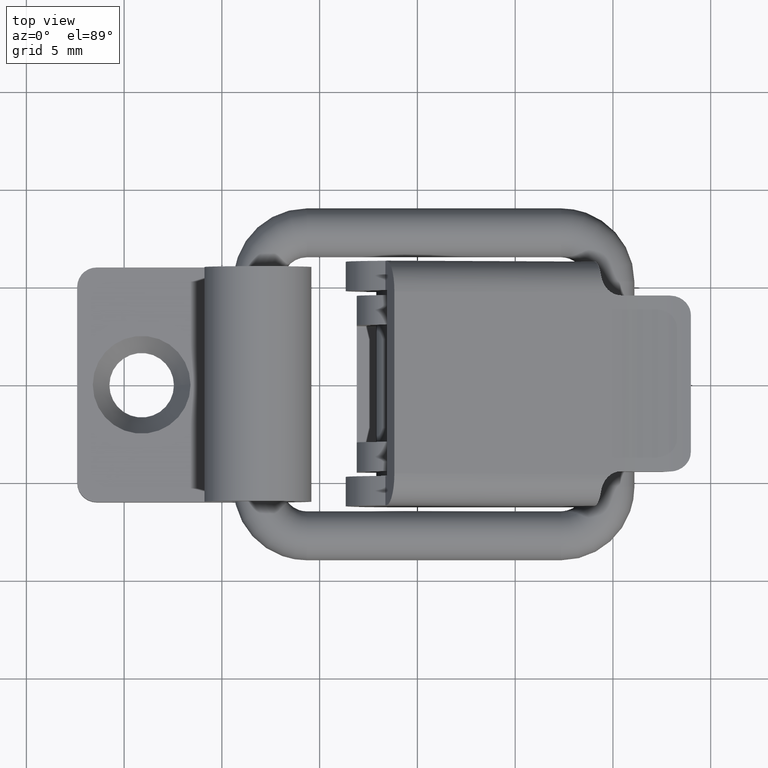
[diagram: clean part render]
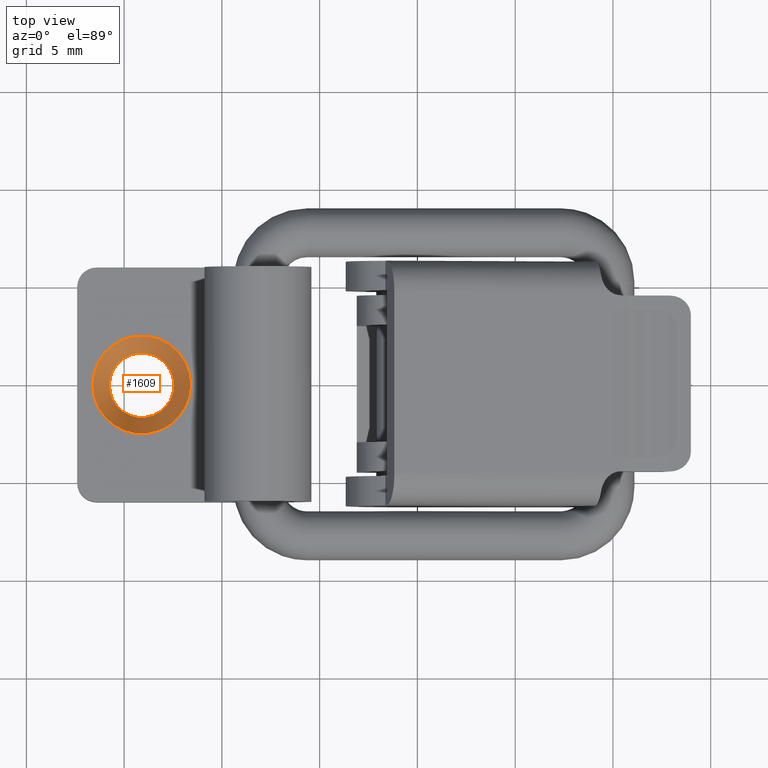
[diagram: same view with one face highlighted and labeled with its STEP entity id]
A machine part, top view. The second image highlights one B-rep face of the part: STEP entity #1609.
In plain terms, the highlighted conical surface has half-angle 30 deg.
Its self-contained STEP definition (entity closure, byte-faithful):
#45=CONICAL_SURFACE('',#1732,2.075,30.);
#406=FACE_BOUND('',#552,.T.);
#444=FACE_OUTER_BOUND('',#551,.T.);
#551=EDGE_LOOP('',(#1189));
#552=EDGE_LOOP('',(#1190));
#678=CIRCLE('',#1729,2.5);
#680=CIRCLE('',#1733,1.65);
#782=VERTEX_POINT('',#2546);
#783=VERTEX_POINT('',#2551);
#941=EDGE_CURVE('',#782,#782,#678,.T.);
#943=EDGE_CURVE('',#783,#783,#680,.T.);
#1189=ORIENTED_EDGE('',*,*,#941,.F.);
#1190=ORIENTED_EDGE('',*,*,#943,.F.);
#1609=ADVANCED_FACE('',(#444,#406),#45,.F.);
#1729=AXIS2_PLACEMENT_3D('',#2547,#1974,#1975);
#1732=AXIS2_PLACEMENT_3D('',#2550,#1980,#1981);
#1733=AXIS2_PLACEMENT_3D('',#2552,#1982,#1983);
#1974=DIRECTION('center_axis',(-1.69967494438815E-16,-1.,0.));
#1975=DIRECTION('ref_axis',(1.,-1.69967494438815E-16,0.));
#1980=DIRECTION('center_axis',(1.69967494438815E-16,1.,0.));
#1981=DIRECTION('ref_axis',(1.,-1.69967494438815E-16,0.));
#1982=DIRECTION('center_axis',(1.69967494438815E-16,1.,0.));
#1983=DIRECTION('ref_axis',(1.,-1.69967494438815E-16,0.));
#2546=CARTESIAN_POINT('',(5.8,1.5,0.));
#2547=CARTESIAN_POINT('Origin',(3.3,1.5,0.));
#2550=CARTESIAN_POINT('Origin',(3.3,0.763878406783226,0.));
#2551=CARTESIAN_POINT('',(4.95,0.0277568135664533,0.));
#2552=CARTESIAN_POINT('Origin',(3.3,0.0277568135664552,0.));